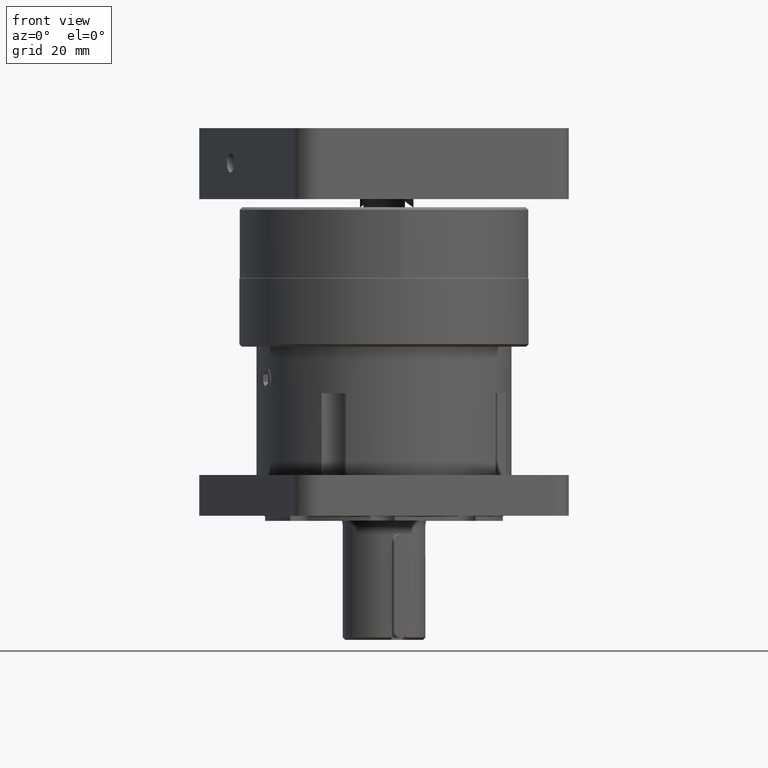
[diagram: clean part render]
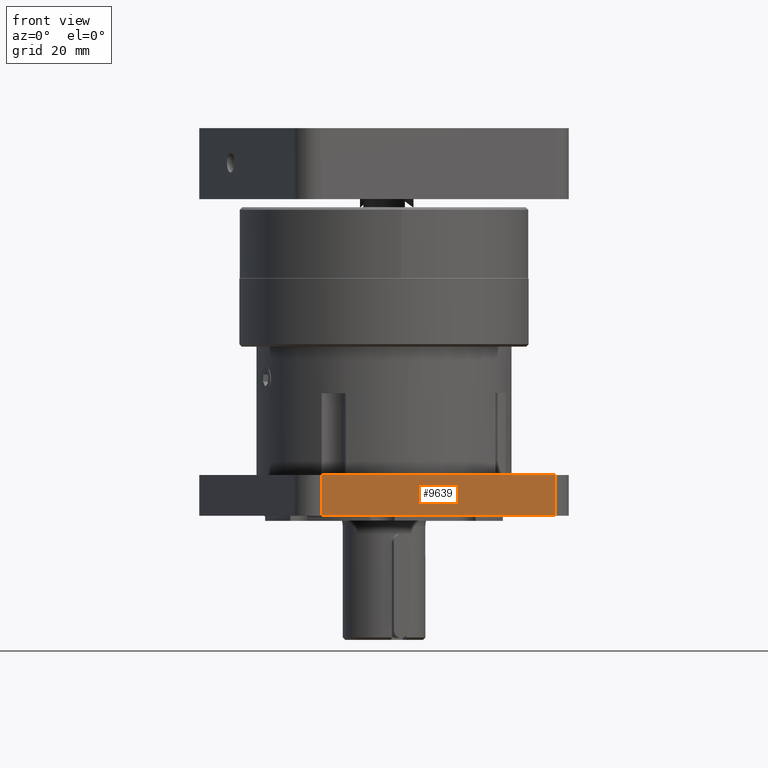
[diagram: same view with one face highlighted and labeled with its STEP entity id]
A machine part, front view. The second image highlights one B-rep face of the part: STEP entity #9639.
In plain terms, the highlighted planar face has unit normal (0.3697, -0.9292, -0).
Its self-contained STEP definition (entity closure, byte-faithful):
#6 = DIRECTION ( 'NONE',  ( 1.269886168408491614E-14, 1.076663275899905845E-14, -1.000000000000000000 ) ) ;
#829 = DIRECTION ( 'NONE',  ( 0.9291620770789323913, 0.3696726045007449613, 1.577942987264462792E-14 ) ) ;
#968 = VECTOR ( 'NONE', #6, 1000.000000000000000 ) ;
#1017 = CARTESIAN_POINT ( 'NONE',  ( -52.32467058873555743, 106.0032801906793622, 101.3421530004235933 ) ) ;
#1606 = DIRECTION ( 'NONE',  ( 0.3696726045007449613, -0.9291620770789323913, -5.309525584547253126E-15 ) ) ;
#1890 = EDGE_LOOP ( 'NONE', ( #15751, #4518, #4888, #7584 ) ) ;
#2392 = LINE ( 'NONE', #10405, #968 ) ;
#2690 = EDGE_CURVE ( 'NONE', #4138, #9981, #15702, .T. ) ;
#3135 = LINE ( 'NONE', #4302, #8812 ) ;
#3943 = VERTEX_POINT ( 'NONE', #14548 ) ;
#4138 = VERTEX_POINT ( 'NONE', #15517 ) ;
#4302 = CARTESIAN_POINT ( 'NONE',  ( -129.9747453702220810, 75.10974063255198985, 113.7859539304222523 ) ) ;
#4518 = ORIENTED_EDGE ( 'NONE', *, *, #14200, .T. ) ;
#4567 = CARTESIAN_POINT ( 'NONE',  ( -124.0002332146045205, 77.48673547949179863, 113.9811529304223683 ) ) ;
#4888 = ORIENTED_EDGE ( 'NONE', *, *, #2690, .T. ) ;
#5812 = AXIS2_PLACEMENT_3D ( 'NONE', #14393, #1606, #13176 ) ;
#7584 = ORIENTED_EDGE ( 'NONE', *, *, #14444, .F. ) ;
#8812 = VECTOR ( 'NONE', #12103, 1000.000000000000227 ) ;
#9639 = ADVANCED_FACE ( 'NONE', ( #14220 ), #14293, .T. ) ;
#9981 = VERTEX_POINT ( 'NONE', #1017 ) ;
#10314 = LINE ( 'NONE', #4567, #11527 ) ;
#10405 = CARTESIAN_POINT ( 'NONE',  ( -52.32467058873571375, 106.0032801906792486, 113.9811529304235904 ) ) ;
#11113 = CARTESIAN_POINT ( 'NONE',  ( -129.9747453702219104, 75.10974063255213196, 101.3421530004222717 ) ) ;
#11527 = VECTOR ( 'NONE', #16211, 1000.000000000000000 ) ;
#12103 = DIRECTION ( 'NONE',  ( 0.9291620770789322803, 0.3696726045007449613, 1.577942987264462476E-14 ) ) ;
#13176 = DIRECTION ( 'NONE',  ( 1.269886168408491456E-14, 1.076663275899905530E-14, -1.000000000000000000 ) ) ;
#13908 = VECTOR ( 'NONE', #829, 1000.000000000000000 ) ;
#14200 = EDGE_CURVE ( 'NONE', #14316, #4138, #10314, .T. ) ;
#14220 = FACE_OUTER_BOUND ( 'NONE', #1890, .T. ) ;
#14293 = PLANE ( 'NONE',  #5812 ) ;
#14316 = VERTEX_POINT ( 'NONE', #16467 ) ;
#14393 = CARTESIAN_POINT ( 'NONE',  ( -129.9747453702219104, 75.10974063255213196, 101.3421530004222717 ) ) ;
#14444 = EDGE_CURVE ( 'NONE', #3943, #9981, #2392, .T. ) ;
#14548 = CARTESIAN_POINT ( 'NONE',  ( -52.32467058873571375, 106.0032801906792486, 113.7859539304235739 ) ) ;
#15517 = CARTESIAN_POINT ( 'NONE',  ( -124.0002332146043500, 77.48673547949192653, 101.3421530004223712 ) ) ;
#15702 = LINE ( 'NONE', #11113, #13908 ) ;
#15751 = ORIENTED_EDGE ( 'NONE', *, *, #16580, .F. ) ;
#16211 = DIRECTION ( 'NONE',  ( 1.269886168408491614E-14, 1.076663275899905845E-14, -1.000000000000000000 ) ) ;
#16467 = CARTESIAN_POINT ( 'NONE',  ( -124.0002332146045632, 77.48673547949178442, 113.7859539304223517 ) ) ;
#16580 = EDGE_CURVE ( 'NONE', #14316, #3943, #3135, .T. ) ;